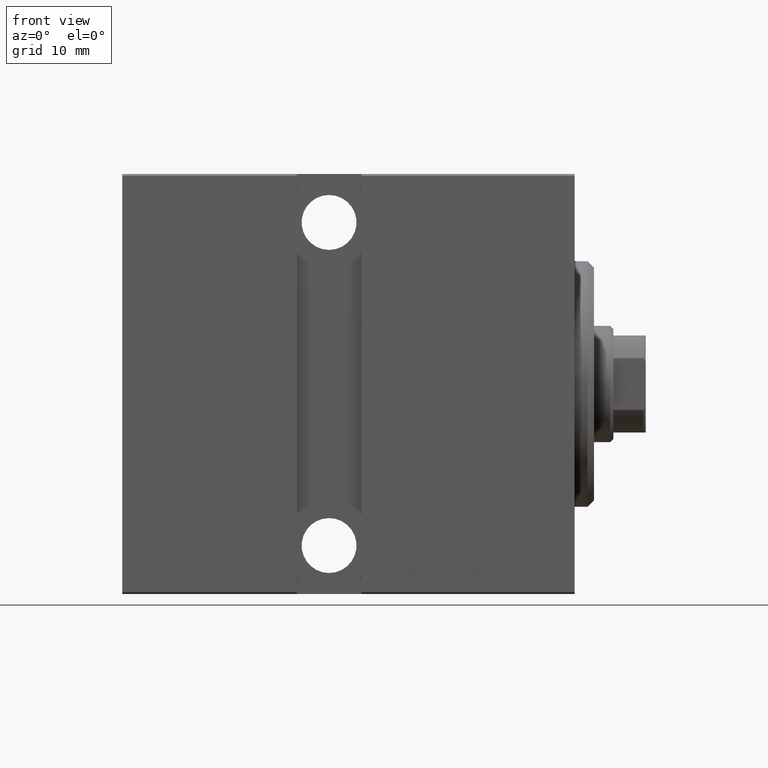
[diagram: clean part render]
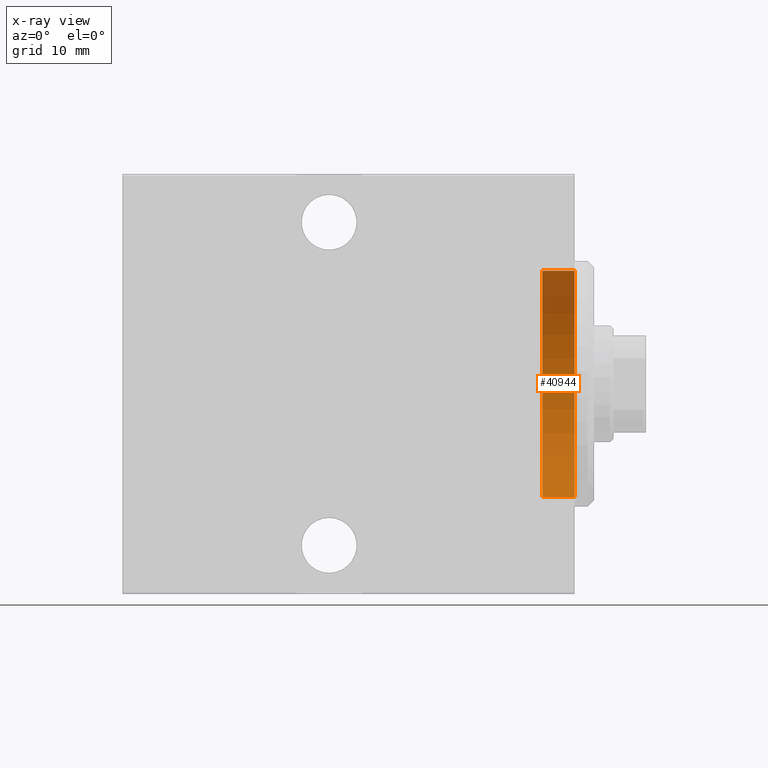
[diagram: x-ray — body ghosted, one internal face saturated and labeled with its STEP entity id]
A machine part, front view, then the same camera in x-ray: the body is ghosted and one INTERNAL B-rep face — a face not visible from any outside direction — is saturated and labeled: STEP entity #40944.
In plain terms, the highlighted cylindrical surface (partial cylindrical patch) has radius 17.5 mm, axis along (1, 0, 0).
Its self-contained STEP definition (entity closure, byte-faithful):
#1224 = CARTESIAN_POINT ( 'NONE',  ( 0.000000000000000000, 2.143131898507868643E-15, 17.50000000000000355 ) ) ;
#2096 = EDGE_CURVE ( 'NONE', #11780, #37259, #22665, .T. ) ;
#3780 = DIRECTION ( 'NONE',  ( 0.000000000000000000, 0.000000000000000000, -1.000000000000000000 ) ) ;
#4838 = AXIS2_PLACEMENT_3D ( 'NONE', #42497, #28830, #29253 ) ;
#4969 = LINE ( 'NONE', #38413, #32239 ) ;
#5103 = CARTESIAN_POINT ( 'NONE',  ( -5.000000000000000000, 0.000000000000000000, 0.000000000000000000 ) ) ;
#7160 = VERTEX_POINT ( 'NONE', #13085 ) ;
#8364 = CYLINDRICAL_SURFACE ( 'NONE', #27588, 17.50000000000000355 ) ;
#9877 = ORIENTED_EDGE ( 'NONE', *, *, #26610, .F. ) ;
#11780 = VERTEX_POINT ( 'NONE', #40015 ) ;
#13085 = CARTESIAN_POINT ( 'NONE',  ( -5.000000000000000000, 0.000000000000000000, -17.50000000000000355 ) ) ;
#13536 = DIRECTION ( 'NONE',  ( 1.000000000000000000, 0.000000000000000000, 0.000000000000000000 ) ) ;
#14119 = VECTOR ( 'NONE', #22143, 1000.000000000000000 ) ;
#14873 = FACE_OUTER_BOUND ( 'NONE', #14911, .T. ) ;
#14911 = EDGE_LOOP ( 'NONE', ( #39870, #27852, #31066, #9877 ) ) ;
#14944 = CARTESIAN_POINT ( 'NONE',  ( -5.000000000000000000, 2.143131898507868643E-15, 17.50000000000000355 ) ) ;
#15371 = DIRECTION ( 'NONE',  ( 1.000000000000000000, 0.000000000000000000, 0.000000000000000000 ) ) ;
#15392 = CARTESIAN_POINT ( 'NONE',  ( -5.000000000000000000, 2.143131898507868643E-15, 17.50000000000000355 ) ) ;
#16357 = DIRECTION ( 'NONE',  ( 0.000000000000000000, 0.000000000000000000, -1.000000000000000000 ) ) ;
#18665 = LINE ( 'NONE', #15392, #14119 ) ;
#19382 = CIRCLE ( 'NONE', #4838, 17.50000000000000355 ) ;
#22143 = DIRECTION ( 'NONE',  ( 1.000000000000000000, 0.000000000000000000, 0.000000000000000000 ) ) ;
#22665 = CIRCLE ( 'NONE', #31674, 17.50000000000000355 ) ;
#24609 = EDGE_CURVE ( 'NONE', #30364, #37259, #18665, .T. ) ;
#26610 = EDGE_CURVE ( 'NONE', #7160, #11780, #4969, .T. ) ;
#27588 = AXIS2_PLACEMENT_3D ( 'NONE', #5103, #38767, #16357 ) ;
#27852 = ORIENTED_EDGE ( 'NONE', *, *, #24609, .T. ) ;
#28830 = DIRECTION ( 'NONE',  ( 1.000000000000000000, 0.000000000000000000, 0.000000000000000000 ) ) ;
#29253 = DIRECTION ( 'NONE',  ( 0.000000000000000000, 0.000000000000000000, -1.000000000000000000 ) ) ;
#30364 = VERTEX_POINT ( 'NONE', #14944 ) ;
#31066 = ORIENTED_EDGE ( 'NONE', *, *, #2096, .F. ) ;
#31674 = AXIS2_PLACEMENT_3D ( 'NONE', #33953, #13536, #3780 ) ;
#32239 = VECTOR ( 'NONE', #15371, 1000.000000000000000 ) ;
#33953 = CARTESIAN_POINT ( 'NONE',  ( 0.000000000000000000, 0.000000000000000000, 0.000000000000000000 ) ) ;
#37259 = VERTEX_POINT ( 'NONE', #1224 ) ;
#38413 = CARTESIAN_POINT ( 'NONE',  ( -5.000000000000000000, 0.000000000000000000, -17.50000000000000355 ) ) ;
#38767 = DIRECTION ( 'NONE',  ( 1.000000000000000000, 0.000000000000000000, 0.000000000000000000 ) ) ;
#39870 = ORIENTED_EDGE ( 'NONE', *, *, #41783, .T. ) ;
#40015 = CARTESIAN_POINT ( 'NONE',  ( 0.000000000000000000, 0.000000000000000000, -17.50000000000000355 ) ) ;
#40944 = ADVANCED_FACE ( 'NONE', ( #14873 ), #8364, .T. ) ;
#41783 = EDGE_CURVE ( 'NONE', #7160, #30364, #19382, .T. ) ;
#42497 = CARTESIAN_POINT ( 'NONE',  ( -5.000000000000000000, 0.000000000000000000, 0.000000000000000000 ) ) ;